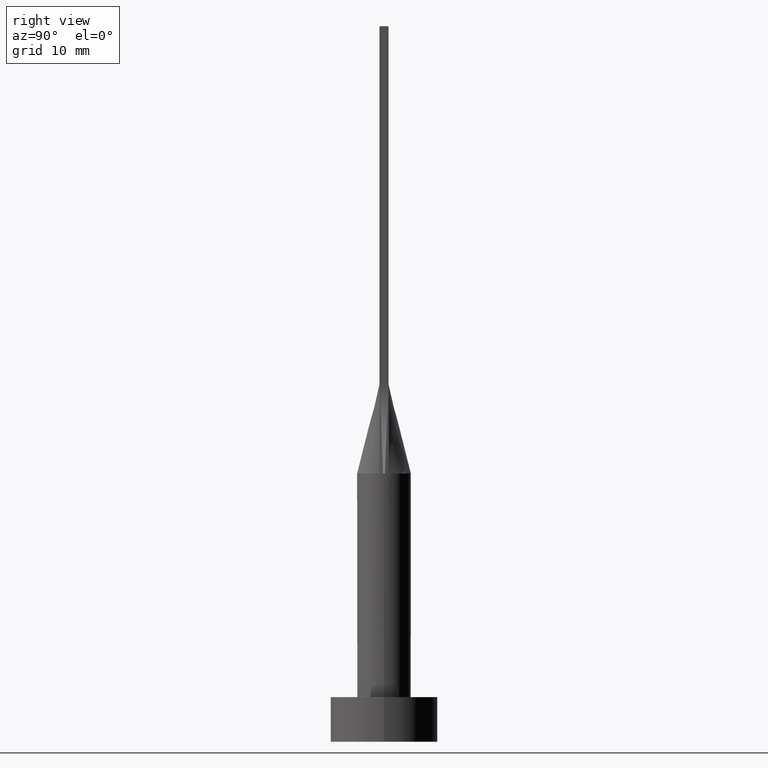
[diagram: clean part render]
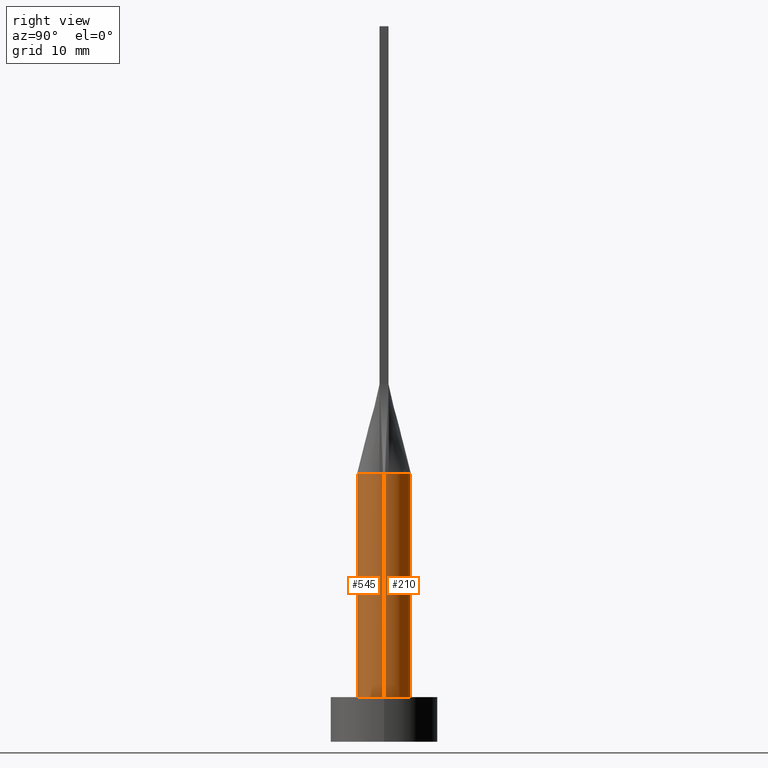
[diagram: same view with one multi-face feature highlighted, each face labeled with its STEP entity id]
A machine part, right view. The highlighted faces form ONE feature: a constant-radius fillet chain: 2 tangent blend faces with common blend radius 3 mm. The faces share edges in the B-rep.
Their STEP definitions:
[1] entity #545 (Cylinder):
#11 = EDGE_CURVE ( 'NONE', #560, #127, #547, .T. ) ;
#15 = CARTESIAN_POINT ( 'NONE',  ( -3.000000000000000444, 0.000000000000000000, 30.00000000000000355 ) ) ;
#18 = CARTESIAN_POINT ( 'NONE',  ( 0.000000000000000000, 0.000000000000000000, 30.00000000000000355 ) ) ;
#21 = DIRECTION ( 'NONE',  ( -0.000000000000000000, -0.000000000000000000, -1.000000000000000000 ) ) ;
#22 = LINE ( 'NONE', #15, #282 ) ;
#28 = AXIS2_PLACEMENT_3D ( 'NONE', #185, #235, #273 ) ;
#31 = ORIENTED_EDGE ( 'NONE', *, *, #446, .F. ) ;
#40 = CARTESIAN_POINT ( 'NONE',  ( 0.000000000000000000, 0.000000000000000000, 30.00000000000000355 ) ) ;
#61 = VERTEX_POINT ( 'NONE', #398 ) ;
#86 = AXIS2_PLACEMENT_3D ( 'NONE', #144, #21, #507 ) ;
#93 = CARTESIAN_POINT ( 'NONE',  ( 0.000000000000000000, 0.000000000000000000, 30.00000000000000355 ) ) ;
#98 = DIRECTION ( 'NONE',  ( -0.000000000000000000, -0.000000000000000000, -1.000000000000000000 ) ) ;
#100 = CARTESIAN_POINT ( 'NONE',  ( 2.999804865149861666, 7.183978618307599791E-16, 30.00000000000000355 ) ) ;
#118 = CARTESIAN_POINT ( 'NONE',  ( -3.000000000000000444, 0.000000000000000000, 5.000000000000000000 ) ) ;
#125 = EDGE_CURVE ( 'NONE', #355, #479, #203, .T. ) ;
#127 = VERTEX_POINT ( 'NONE', #100 ) ;
#143 = EDGE_CURVE ( 'NONE', #471, #560, #509, .T. ) ;
#144 = CARTESIAN_POINT ( 'NONE',  ( 0.000000000000000000, 0.000000000000000000, 30.00000000000000355 ) ) ;
#150 = DIRECTION ( 'NONE',  ( -0.000000000000000000, -0.000000000000000000, -1.000000000000000000 ) ) ;
#178 = DIRECTION ( 'NONE',  ( 1.000000000000000000, 0.000000000000000000, 0.000000000000000000 ) ) ;
#181 = LINE ( 'NONE', #498, #373 ) ;
#185 = CARTESIAN_POINT ( 'NONE',  ( 0.000000000000000000, 0.000000000000000000, 5.000000000000000000 ) ) ;
#203 = CIRCLE ( 'NONE', #28, 3.000000000000000444 ) ;
#228 = FACE_OUTER_BOUND ( 'NONE', #435, .T. ) ;
#235 = DIRECTION ( 'NONE',  ( 0.000000000000000000, 0.000000000000000000, 1.000000000000000000 ) ) ;
#242 = ORIENTED_EDGE ( 'NONE', *, *, #348, .T. ) ;
#243 = CIRCLE ( 'NONE', #321, 3.000000000000000444 ) ;
#249 = DIRECTION ( 'NONE',  ( 1.000000000000000000, 0.000000000000000000, 0.000000000000000000 ) ) ;
#267 = ORIENTED_EDGE ( 'NONE', *, *, #125, .T. ) ;
#268 = EDGE_CURVE ( 'NONE', #61, #471, #243, .T. ) ;
#273 = DIRECTION ( 'NONE',  ( 1.000000000000000000, 0.000000000000000000, 0.000000000000000000 ) ) ;
#282 = VECTOR ( 'NONE', #150, 1000.000000000000000 ) ;
#294 = CARTESIAN_POINT ( 'NONE',  ( 2.951896064709005785, -0.5367080392066734262, 30.00000000000000355 ) ) ;
#307 = ORIENTED_EDGE ( 'NONE', *, *, #11, .F. ) ;
#321 = AXIS2_PLACEMENT_3D ( 'NONE', #18, #425, #249 ) ;
#326 = DIRECTION ( 'NONE',  ( 0.000000000000000000, 0.000000000000000000, 1.000000000000000000 ) ) ;
#330 = AXIS2_PLACEMENT_3D ( 'NONE', #40, #575, #453 ) ;
#348 = EDGE_CURVE ( 'NONE', #61, #355, #22, .T. ) ;
#355 = VERTEX_POINT ( 'NONE', #118 ) ;
#373 = VECTOR ( 'NONE', #98, 1000.000000000000000 ) ;
#398 = CARTESIAN_POINT ( 'NONE',  ( -2.999804865149861666, -2.046477192139111704E-15, 30.00000000000000355 ) ) ;
#406 = CARTESIAN_POINT ( 'NONE',  ( -2.951885853416577277, -0.5367063210726346068, 30.00000000000000355 ) ) ;
#425 = DIRECTION ( 'NONE',  ( 0.000000000000000000, 0.000000000000000000, 1.000000000000000000 ) ) ;
#435 = EDGE_LOOP ( 'NONE', ( #31, #307, #442, #526, #242, #267 ) ) ;
#442 = ORIENTED_EDGE ( 'NONE', *, *, #143, .F. ) ;
#446 = EDGE_CURVE ( 'NONE', #127, #479, #181, .T. ) ;
#453 = DIRECTION ( 'NONE',  ( 1.000000000000000000, 1.776356839400250465E-15, 0.000000000000000000 ) ) ;
#463 = CARTESIAN_POINT ( 'NONE',  ( 3.000000000000000444, 3.673940397442060361E-16, 5.000000000000000000 ) ) ;
#471 = VERTEX_POINT ( 'NONE', #406 ) ;
#479 = VERTEX_POINT ( 'NONE', #463 ) ;
#498 = CARTESIAN_POINT ( 'NONE',  ( 3.000000000000000444, 3.673940397442060361E-16, 30.00000000000000355 ) ) ;
#507 = DIRECTION ( 'NONE',  ( -1.000000000000000000, 0.000000000000000000, 0.000000000000000000 ) ) ;
#509 = CIRCLE ( 'NONE', #578, 3.000000000000000444 ) ;
#526 = ORIENTED_EDGE ( 'NONE', *, *, #268, .F. ) ;
#545 = ADVANCED_FACE ( 'NONE', ( #228 ), #550, .T. ) ;
#547 = CIRCLE ( 'NONE', #330, 3.000000000000000444 ) ;
#550 = CYLINDRICAL_SURFACE ( 'NONE', #86, 3.000000000000000444 ) ;
#560 = VERTEX_POINT ( 'NONE', #294 ) ;
#575 = DIRECTION ( 'NONE',  ( 0.000000000000000000, 0.000000000000000000, 1.000000000000000000 ) ) ;
#578 = AXIS2_PLACEMENT_3D ( 'NONE', #93, #326, #178 ) ;
[2] entity #210 (Cylinder):
#2 = DIRECTION ( 'NONE',  ( 0.000000000000000000, 0.000000000000000000, 1.000000000000000000 ) ) ;
#5 = EDGE_CURVE ( 'NONE', #171, #61, #465, .T. ) ;
#7 = CARTESIAN_POINT ( 'NONE',  ( 2.951871110830718514, 0.5367036202482695639, 30.00000000000000355 ) ) ;
#10 = FACE_OUTER_BOUND ( 'NONE', #450, .T. ) ;
#15 = CARTESIAN_POINT ( 'NONE',  ( -3.000000000000000444, 0.000000000000000000, 30.00000000000000355 ) ) ;
#22 = LINE ( 'NONE', #15, #282 ) ;
#38 = CIRCLE ( 'NONE', #370, 3.000000000000000444 ) ;
#53 = DIRECTION ( 'NONE',  ( 1.000000000000000000, 0.000000000000000000, 0.000000000000000000 ) ) ;
#61 = VERTEX_POINT ( 'NONE', #398 ) ;
#77 = CARTESIAN_POINT ( 'NONE',  ( -0.8331239790496237640, 2.909606296598777231, 30.00000000000000000 ) ) ;
#81 = CARTESIAN_POINT ( 'NONE',  ( -2.907609730299723250, 0.7786563145999495505, 30.00000000000000355 ) ) ;
#91 = EDGE_CURVE ( 'NONE', #479, #355, #38, .T. ) ;
#92 = DIRECTION ( 'NONE',  ( 0.000000000000000000, 0.000000000000000000, 1.000000000000000000 ) ) ;
#95 = B_SPLINE_CURVE_WITH_KNOTS ( 'NONE', 3,
 ( #170, #492, #209, #207, #251, #205, #259, #532, #440, #306, #77, #452, #212, #399, #572, #126, #81, #574 ),
 .UNSPECIFIED., .F., .F.,
 ( 4, 2, 2, 2, 2, 2, 2, 2, 4 ),
 ( 0.000000000000000000, 0.1250000000000000000, 0.2500000000000000000, 0.3750000000000000000, 0.5000000000000000000, 0.6250000000000000000, 0.7500000000000000000, 0.8750000000000000000, 1.000000000000000000 ),
 .UNSPECIFIED. ) ;
#98 = DIRECTION ( 'NONE',  ( -0.000000000000000000, -0.000000000000000000, -1.000000000000000000 ) ) ;
#100 = CARTESIAN_POINT ( 'NONE',  ( 2.999804865149861666, 7.183978618307599791E-16, 30.00000000000000355 ) ) ;
#118 = CARTESIAN_POINT ( 'NONE',  ( -3.000000000000000444, 0.000000000000000000, 5.000000000000000000 ) ) ;
#126 = CARTESIAN_POINT ( 'NONE',  ( -2.829409566978765334, 1.041313647073049298, 30.00000000000001066 ) ) ;
#127 = VERTEX_POINT ( 'NONE', #100 ) ;
#132 = DIRECTION ( 'NONE',  ( 1.000000000000000000, 0.000000000000000000, 0.000000000000000000 ) ) ;
#138 = AXIS2_PLACEMENT_3D ( 'NONE', #173, #487, #132 ) ;
#150 = DIRECTION ( 'NONE',  ( -0.000000000000000000, -0.000000000000000000, -1.000000000000000000 ) ) ;
#152 = VERTEX_POINT ( 'NONE', #7 ) ;
#164 = ORIENTED_EDGE ( 'NONE', *, *, #401, .F. ) ;
#170 = CARTESIAN_POINT ( 'NONE',  ( 2.951871110830718514, 0.5367036202482695639, 30.00000000000000355 ) ) ;
#171 = VERTEX_POINT ( 'NONE', #317 ) ;
#173 = CARTESIAN_POINT ( 'NONE',  ( 0.000000000000000000, 0.000000000000000000, 30.00000000000000355 ) ) ;
#181 = LINE ( 'NONE', #498, #373 ) ;
#187 = AXIS2_PLACEMENT_3D ( 'NONE', #318, #92, #419 ) ;
#205 = CARTESIAN_POINT ( 'NONE',  ( 1.882426928433512892, 2.362790634184934291, 30.00000000000000355 ) ) ;
#207 = CARTESIAN_POINT ( 'NONE',  ( 2.567367750129863957, 1.580669302822274913, 30.00000000000001066 ) ) ;
#209 = CARTESIAN_POINT ( 'NONE',  ( 2.829409566978765778, 1.041313647073049298, 30.00000000000001421 ) ) ;
#210 = ADVANCED_FACE ( 'NONE', ( #10 ), #464, .T. ) ;
#212 = CARTESIAN_POINT ( 'NONE',  ( -1.882426928433513336, 2.362790634184935623, 30.00000000000000711 ) ) ;
#251 = CARTESIAN_POINT ( 'NONE',  ( 2.382399439808187580, 1.857547746650221709, 30.00000000000000711 ) ) ;
#259 = CARTESIAN_POINT ( 'NONE',  ( 1.566158656300002061, 2.589797565249318811, 30.00000000000000000 ) ) ;
#265 = CIRCLE ( 'NONE', #187, 3.000000000000000444 ) ;
#274 = AXIS2_PLACEMENT_3D ( 'NONE', #504, #551, #457 ) ;
#282 = VECTOR ( 'NONE', #150, 1000.000000000000000 ) ;
#306 = CARTESIAN_POINT ( 'NONE',  ( -0.4172881767044976375, 2.999999999999999556, 29.99999999999999645 ) ) ;
#309 = ORIENTED_EDGE ( 'NONE', *, *, #446, .T. ) ;
#317 = CARTESIAN_POINT ( 'NONE',  ( -2.951881273711813858, 0.5367053345652121887, 30.00000000000000355 ) ) ;
#318 = CARTESIAN_POINT ( 'NONE',  ( 0.000000000000000000, 0.000000000000000000, 30.00000000000000355 ) ) ;
#329 = CARTESIAN_POINT ( 'NONE',  ( 0.000000000000000000, 0.000000000000000000, 5.000000000000000000 ) ) ;
#348 = EDGE_CURVE ( 'NONE', #61, #355, #22, .T. ) ;
#355 = VERTEX_POINT ( 'NONE', #118 ) ;
#370 = AXIS2_PLACEMENT_3D ( 'NONE', #329, #2, #53 ) ;
#373 = VECTOR ( 'NONE', #98, 1000.000000000000000 ) ;
#390 = ORIENTED_EDGE ( 'NONE', *, *, #536, .F. ) ;
#398 = CARTESIAN_POINT ( 'NONE',  ( -2.999804865149861666, -2.046477192139111704E-15, 30.00000000000000355 ) ) ;
#399 = CARTESIAN_POINT ( 'NONE',  ( -2.382399439808186692, 1.857547746650221265, 30.00000000000001066 ) ) ;
#401 = EDGE_CURVE ( 'NONE', #152, #171, #95, .T. ) ;
#407 = ORIENTED_EDGE ( 'NONE', *, *, #348, .F. ) ;
#419 = DIRECTION ( 'NONE',  ( 1.000000000000000000, 0.000000000000000000, 0.000000000000000000 ) ) ;
#440 = CARTESIAN_POINT ( 'NONE',  ( 0.4172881767044975820, 3.000000000000000000, 30.00000000000000355 ) ) ;
#446 = EDGE_CURVE ( 'NONE', #127, #479, #181, .T. ) ;
#450 = EDGE_LOOP ( 'NONE', ( #390, #309, #577, #407, #476, #164 ) ) ;
#452 = CARTESIAN_POINT ( 'NONE',  ( -1.566158656300002061, 2.589797565249319700, 30.00000000000000000 ) ) ;
#457 = DIRECTION ( 'NONE',  ( -1.000000000000000000, 0.000000000000000000, 0.000000000000000000 ) ) ;
#463 = CARTESIAN_POINT ( 'NONE',  ( 3.000000000000000444, 3.673940397442060361E-16, 5.000000000000000000 ) ) ;
#464 = CYLINDRICAL_SURFACE ( 'NONE', #274, 3.000000000000000444 ) ;
#465 = CIRCLE ( 'NONE', #138, 3.000000000000000444 ) ;
#476 = ORIENTED_EDGE ( 'NONE', *, *, #5, .F. ) ;
#479 = VERTEX_POINT ( 'NONE', #463 ) ;
#487 = DIRECTION ( 'NONE',  ( 0.000000000000000000, 0.000000000000000000, 1.000000000000000000 ) ) ;
#492 = CARTESIAN_POINT ( 'NONE',  ( 2.907609730299723250, 0.7786563145999496616, 29.99999999999999645 ) ) ;
#498 = CARTESIAN_POINT ( 'NONE',  ( 3.000000000000000444, 3.673940397442060361E-16, 30.00000000000000355 ) ) ;
#504 = CARTESIAN_POINT ( 'NONE',  ( 0.000000000000000000, 0.000000000000000000, 30.00000000000000355 ) ) ;
#532 = CARTESIAN_POINT ( 'NONE',  ( 0.8331239790496237640, 2.909606296598776787, 30.00000000000000355 ) ) ;
#536 = EDGE_CURVE ( 'NONE', #127, #152, #265, .T. ) ;
#551 = DIRECTION ( 'NONE',  ( -0.000000000000000000, -0.000000000000000000, -1.000000000000000000 ) ) ;
#572 = CARTESIAN_POINT ( 'NONE',  ( -2.567367750129864401, 1.580669302822275357, 30.00000000000001421 ) ) ;
#574 = CARTESIAN_POINT ( 'NONE',  ( -2.951881273711813858, 0.5367053345652121887, 30.00000000000000355 ) ) ;
#577 = ORIENTED_EDGE ( 'NONE', *, *, #91, .T. ) ;